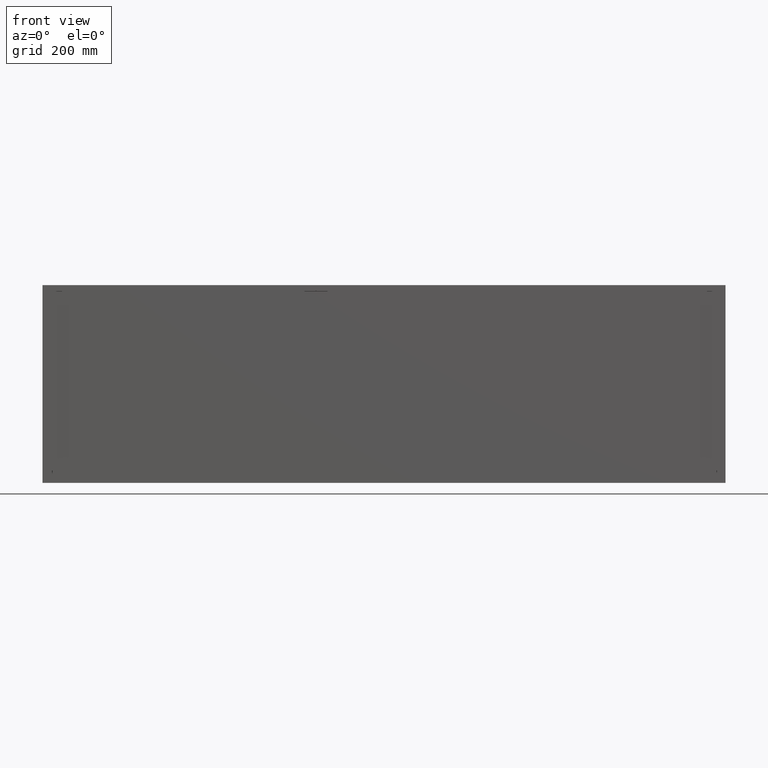
[diagram: clean part render]
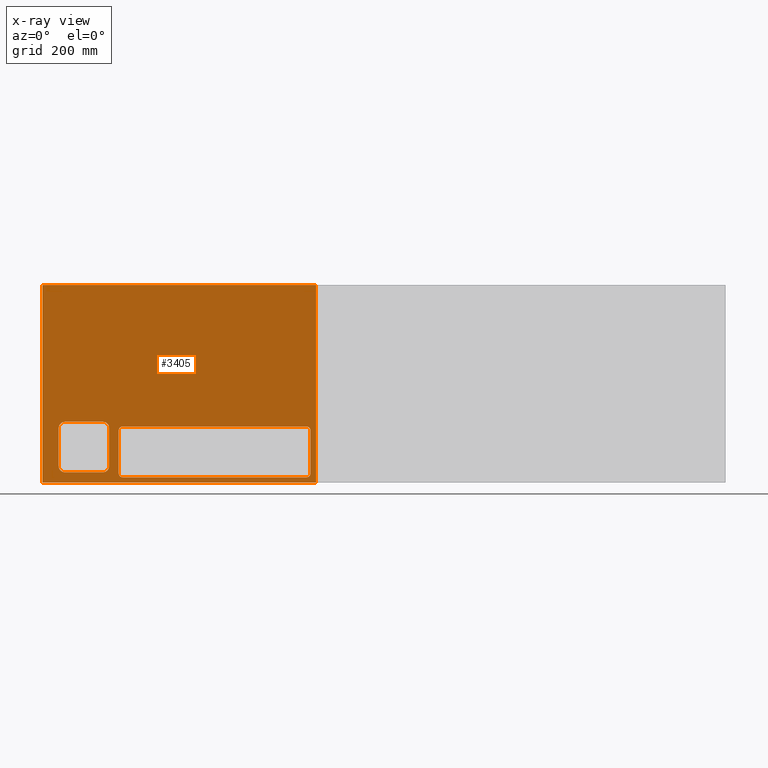
[diagram: x-ray — body ghosted, one internal face saturated and labeled with its STEP entity id]
A machine part, front view, then the same camera in x-ray: the body is ghosted and one INTERNAL B-rep face — a face not visible from any outside direction — is saturated and labeled: STEP entity #3405.
In plain terms, the highlighted planar face has unit normal (0, -1, 0).
Its self-contained STEP definition (entity closure, byte-faithful):
#46 = CARTESIAN_POINT ( 'NONE',  ( 181.0000000000001705, 300.0000000000000000, -335.9999999999999432 ) ) ;
#139 = CARTESIAN_POINT ( 'NONE',  ( 5.551115123125782702E-14, 300.0000000000000000, -470.0000000000000000 ) ) ;
#144 = CARTESIAN_POINT ( 'NONE',  ( 637.0000000000000000, 300.0000000000000000, -447.0034267502443868 ) ) ;
#176 = DIRECTION ( 'NONE',  ( 0.0000000000000000000, 0.0000000000000000000, -1.000000000000000000 ) ) ;
#219 = CARTESIAN_POINT ( 'NONE',  ( 181.0000000000001705, 300.0000000000000000, -340.1398854846225390 ) ) ;
#522 =( BOUNDED_CURVE ( )  B_SPLINE_CURVE ( 3, ( #11392, #219, #5217, #10180 ),
 .UNSPECIFIED., .F., .T. ) 
 B_SPLINE_CURVE_WITH_KNOTS ( ( 4, 4 ),
 ( 2.356537106530518955, 3.926648200649073051 ),
 .UNSPECIFIED. ) 
 CURVE ( )  GEOMETRIC_REPRESENTATION_ITEM ( )  RATIONAL_B_SPLINE_CURVE ( ( 1.000000000000000000, 0.8048993373437811627, 0.8048993373437811627, 1.000000000000000000 ) ) 
 REPRESENTATION_ITEM ( '' )  );
#589 = DIRECTION ( 'NONE',  ( -0.0000000000000000000, 1.000000000000000000, -0.0000000000000000000 ) ) ;
#616 = ORIENTED_EDGE ( 'NONE', *, *, #13535, .T. ) ;
#619 = CIRCLE ( 'NONE', #2713, 15.00000000000001421 ) ;
#755 = CARTESIAN_POINT ( 'NONE',  ( 143.5102767966332067, 300.0000000000000000, -324.9999999999999432 ) ) ;
#840 = CIRCLE ( 'NONE', #2935, 15.00000000000001421 ) ;
#882 = ORIENTED_EDGE ( 'NONE', *, *, #12655, .T. ) ;
#1030 = LINE ( 'NONE', #6034, #15735 ) ;
#1171 = EDGE_CURVE ( 'NONE', #5849, #15453, #7843, .T. ) ;
#1420 = CARTESIAN_POINT ( 'NONE',  ( 53.51027679663322800, 300.0000000000000000, -445.0000000000000568 ) ) ;
#1542 = VERTEX_POINT ( 'NONE', #16061 ) ;
#1622 = VECTOR ( 'NONE', #7757, 1000.000000000000000 ) ;
#1661 = CARTESIAN_POINT ( 'NONE',  ( 325.0000000000000000, 300.0000000000000000, -324.9999999999999432 ) ) ;
#1682 = LINE ( 'NONE', #6679, #4785 ) ;
#1940 = CARTESIAN_POINT ( 'NONE',  ( 143.5102767966331498, 300.0000000000000000, -445.0000000000000568 ) ) ;
#1974 = DIRECTION ( 'NONE',  ( -0.0000000000000000000, 1.000000000000000000, -0.0000000000000000000 ) ) ;
#2016 = VERTEX_POINT ( 'NONE', #10571 ) ;
#2130 = ORIENTED_EDGE ( 'NONE', *, *, #9790, .T. ) ;
#2164 = CARTESIAN_POINT ( 'NONE',  ( 181.0000000000002274, 300.0000000000000000, -447.0034267502443868 ) ) ;
#2250 = CARTESIAN_POINT ( 'NONE',  ( 53.51027679663322800, 300.0000000000000000, -324.9999999999999432 ) ) ;
#2380 = DIRECTION ( 'NONE',  ( 1.000000000000000000, 0.0000000000000000000, 0.0000000000000000000 ) ) ;
#2467 = VECTOR ( 'NONE', #15594, 1000.000000000000000 ) ;
#2494 = VECTOR ( 'NONE', #8017, 1000.000000000000000 ) ;
#2608 = EDGE_CURVE ( 'NONE', #15390, #11669, #5834, .T. ) ;
#2713 = AXIS2_PLACEMENT_3D ( 'NONE', #11764, #589, #5595 ) ;
#2772 = CARTESIAN_POINT ( 'NONE',  ( 5.551115123125782702E-14, 300.0000000000000000, 0.0000000000000000000 ) ) ;
#2815 = VERTEX_POINT ( 'NONE', #8551 ) ;
#2935 = AXIS2_PLACEMENT_3D ( 'NONE', #10441, #15412, #4263 ) ;
#2942 = DIRECTION ( 'NONE',  ( 0.0000000000000000000, -0.0000000000000000000, -1.000000000000000000 ) ) ;
#2949 = DIRECTION ( 'NONE',  ( -0.0000000000000000000, -0.0000000000000000000, 1.000000000000000000 ) ) ;
#3032 = CARTESIAN_POINT ( 'NONE',  ( 5.551115123125782702E-14, 300.0000000000000000, -470.0000000000000000 ) ) ;
#3060 = VERTEX_POINT ( 'NONE', #4872 ) ;
#3117 = VERTEX_POINT ( 'NONE', #3812 ) ;
#3158 = CARTESIAN_POINT ( 'NONE',  ( 650.0000000000001137, 300.0000000000000000, 0.0000000000000000000 ) ) ;
#3183 = CARTESIAN_POINT ( 'NONE',  ( 650.0000000000001137, 300.0000000000000000, 0.0000000000000000000 ) ) ;
#3195 = VERTEX_POINT ( 'NONE', #1420 ) ;
#3264 = EDGE_CURVE ( 'NONE', #10756, #6867, #8593, .T. ) ;
#3395 = CARTESIAN_POINT ( 'NONE',  ( 190.9965732497557838, 300.0000000000000000, -456.9999999999999432 ) ) ;
#3405 = ADVANCED_FACE ( 'NONE', ( #5407, #10365, #15338 ), #4185, .T. ) ;
#3450 = VECTOR ( 'NONE', #5048, 1000.000000000000000 ) ;
#3608 = CARTESIAN_POINT ( 'NONE',  ( 637.0000000000000000, 300.0000000000000000, -345.9965732497554995 ) ) ;
#3662 = VECTOR ( 'NONE', #15764, 1000.000000000000000 ) ;
#3804 = CARTESIAN_POINT ( 'NONE',  ( 5.551115123125782702E-14, 300.0000000000000000, 0.0000000000000000000 ) ) ;
#3812 = CARTESIAN_POINT ( 'NONE',  ( 38.51027679663321379, 300.0000000000000000, -429.9999999999999432 ) ) ;
#3958 = VERTEX_POINT ( 'NONE', #8278 ) ;
#4091 = ORIENTED_EDGE ( 'NONE', *, *, #5774, .T. ) ;
#4185 = PLANE ( 'NONE',  #4438 ) ;
#4244 = DIRECTION ( 'NONE',  ( -0.0000000000000000000, -0.0000000000000000000, -1.000000000000000000 ) ) ;
#4263 = DIRECTION ( 'NONE',  ( 0.0000000000000000000, 0.0000000000000000000, -1.000000000000000000 ) ) ;
#4438 = AXIS2_PLACEMENT_3D ( 'NONE', #9149, #14103, #2942 ) ;
#4747 = ORIENTED_EDGE ( 'NONE', *, *, #10927, .F. ) ;
#4785 = VECTOR ( 'NONE', #11626, 1000.000000000000000 ) ;
#4841 = CARTESIAN_POINT ( 'NONE',  ( 627.0034267502442162, 300.0000000000000000, -335.9999999999999432 ) ) ;
#4872 = CARTESIAN_POINT ( 'NONE',  ( 627.0034267502442162, 300.0000000000000000, -335.9999999999999432 ) ) ;
#5001 = CARTESIAN_POINT ( 'NONE',  ( 38.51027679663321379, 300.0000000000000000, -339.9999999999999432 ) ) ;
#5025 = EDGE_LOOP ( 'NONE', ( #2130, #5291, #616, #7154, #4091, #14267, #14573, #11126 ) ) ;
#5048 = DIRECTION ( 'NONE',  ( -1.000000000000000000, -0.0000000000000000000, -0.0000000000000000000 ) ) ;
#5068 = EDGE_CURVE ( 'NONE', #10756, #11106, #12404, .T. ) ;
#5141 = CARTESIAN_POINT ( 'NONE',  ( 637.0000000000001137, 300.0000000000000000, -452.8601145153775178 ) ) ;
#5217 = CARTESIAN_POINT ( 'NONE',  ( 185.1398854846227664, 300.0000000000000000, -336.0000000000000000 ) ) ;
#5291 = ORIENTED_EDGE ( 'NONE', *, *, #12243, .T. ) ;
#5333 = ORIENTED_EDGE ( 'NONE', *, *, #13424, .F. ) ;
#5407 = FACE_BOUND ( 'NONE', #13217, .T. ) ;
#5414 = LINE ( 'NONE', #14112, #6135 ) ;
#5595 = DIRECTION ( 'NONE',  ( 0.0000000000000000000, 0.0000000000000000000, -1.000000000000000000 ) ) ;
#5661 = LINE ( 'NONE', #10619, #2467 ) ;
#5772 = AXIS2_PLACEMENT_3D ( 'NONE', #6396, #11352, #176 ) ;
#5774 = EDGE_CURVE ( 'NONE', #10091, #5849, #12835, .T. ) ;
#5834 = LINE ( 'NONE', #10792, #3662 ) ;
#5849 = VERTEX_POINT ( 'NONE', #755 ) ;
#6034 = CARTESIAN_POINT ( 'NONE',  ( 181.0000000000001705, 300.0000000000000000, -335.9999999999999432 ) ) ;
#6135 = VECTOR ( 'NONE', #2949, 1000.000000000000000 ) ;
#6184 =( BOUNDED_CURVE ( )  B_SPLINE_CURVE ( 3, ( #4841, #9806, #14771, #3608 ),
 .UNSPECIFIED., .F., .T. ) 
 B_SPLINE_CURVE_WITH_KNOTS ( ( 4, 4 ),
 ( 2.356537106530485648, 3.926648200649067277 ),
 .UNSPECIFIED. ) 
 CURVE ( )  GEOMETRIC_REPRESENTATION_ITEM ( )  RATIONAL_B_SPLINE_CURVE ( ( 1.000000000000000000, 0.8048993373437747234, 0.8048993373437747234, 1.000000000000000000 ) ) 
 REPRESENTATION_ITEM ( '' )  );
#6396 = CARTESIAN_POINT ( 'NONE',  ( 143.5102767966332067, 300.0000000000000000, -339.9999999999999432 ) ) ;
#6486 = EDGE_CURVE ( 'NONE', #15453, #2016, #10421, .T. ) ;
#6487 = ORIENTED_EDGE ( 'NONE', *, *, #2608, .F. ) ;
#6617 = VECTOR ( 'NONE', #8145, 1000.000000000000000 ) ;
#6643 = VERTEX_POINT ( 'NONE', #1940 ) ;
#6658 = DIRECTION ( 'NONE',  ( 1.000000000000000000, -0.0000000000000000000, -0.0000000000000000000 ) ) ;
#6669 = AXIS2_PLACEMENT_3D ( 'NONE', #13142, #1974, #6971 ) ;
#6679 = CARTESIAN_POINT ( 'NONE',  ( 325.0000000000000000, 300.0000000000000000, -445.0000000000000568 ) ) ;
#6805 = EDGE_CURVE ( 'NONE', #3060, #3958, #11222, .T. ) ;
#6867 = VERTEX_POINT ( 'NONE', #11303 ) ;
#6971 = DIRECTION ( 'NONE',  ( 2.220446049250310872E-14, 0.0000000000000000000, -1.000000000000000000 ) ) ;
#7154 = ORIENTED_EDGE ( 'NONE', *, *, #7376, .T. ) ;
#7259 = VERTEX_POINT ( 'NONE', #3804 ) ;
#7376 = EDGE_CURVE ( 'NONE', #14727, #10091, #840, .T. ) ;
#7478 = VERTEX_POINT ( 'NONE', #3183 ) ;
#7757 = DIRECTION ( 'NONE',  ( 1.000000000000000000, 0.0000000000000000000, 0.0000000000000000000 ) ) ;
#7843 = CIRCLE ( 'NONE', #5772, 15.00000000000001421 ) ;
#8017 = DIRECTION ( 'NONE',  ( -1.000000000000000000, -0.0000000000000000000, -0.0000000000000000000 ) ) ;
#8145 = DIRECTION ( 'NONE',  ( -2.362176648138631388E-16, 0.0000000000000000000, -1.000000000000000000 ) ) ;
#8278 = CARTESIAN_POINT ( 'NONE',  ( 190.9965732497557269, 300.0000000000000000, -335.9999999999999432 ) ) ;
#8304 = ORIENTED_EDGE ( 'NONE', *, *, #5068, .T. ) ;
#8374 = CARTESIAN_POINT ( 'NONE',  ( 185.1398854846228232, 300.0000000000000000, -456.9999999999999432 ) ) ;
#8551 = CARTESIAN_POINT ( 'NONE',  ( 181.0000000000001705, 300.0000000000000000, -345.9965732497554995 ) ) ;
#8593 = LINE ( 'NONE', #13545, #10933 ) ;
#8675 = CARTESIAN_POINT ( 'NONE',  ( 158.5102767966332067, 300.0000000000000000, -339.9999999999999432 ) ) ;
#9080 = VECTOR ( 'NONE', #4244, 1000.000000000000000 ) ;
#9149 = CARTESIAN_POINT ( 'NONE',  ( 325.0000000000000000, 300.0000000000000000, -235.0000000000000000 ) ) ;
#9327 = ORIENTED_EDGE ( 'NONE', *, *, #6805, .F. ) ;
#9339 = EDGE_CURVE ( 'NONE', #7259, #7478, #13935, .T. ) ;
#9345 = ORIENTED_EDGE ( 'NONE', *, *, #9691, .T. ) ;
#9691 = EDGE_CURVE ( 'NONE', #15390, #6867, #13444, .T. ) ;
#9790 = EDGE_CURVE ( 'NONE', #6643, #3195, #1682, .T. ) ;
#9806 = CARTESIAN_POINT ( 'NONE',  ( 632.8601145153772904, 300.0000000000000568, -335.9999999999999432 ) ) ;
#9812 = EDGE_LOOP ( 'NONE', ( #5333, #14379, #4747, #12745 ) ) ;
#9831 = ORIENTED_EDGE ( 'NONE', *, *, #11673, .F. ) ;
#10091 = VERTEX_POINT ( 'NONE', #2250 ) ;
#10107 = CARTESIAN_POINT ( 'NONE',  ( 632.8601145153777452, 300.0000000000000000, -457.0000000000000568 ) ) ;
#10180 = CARTESIAN_POINT ( 'NONE',  ( 190.9965732497557269, 300.0000000000000000, -335.9999999999999432 ) ) ;
#10365 = FACE_BOUND ( 'NONE', #5025, .T. ) ;
#10421 = LINE ( 'NONE', #15395, #9080 ) ;
#10436 = ORIENTED_EDGE ( 'NONE', *, *, #3264, .F. ) ;
#10441 = CARTESIAN_POINT ( 'NONE',  ( 53.51027679663322800, 300.0000000000000000, -339.9999999999999432 ) ) ;
#10571 = CARTESIAN_POINT ( 'NONE',  ( 158.5102767966332635, 300.0000000000000000, -429.9999999999999432 ) ) ;
#10619 = CARTESIAN_POINT ( 'NONE',  ( 38.51027679663321379, 300.0000000000000000, -235.0000000000000000 ) ) ;
#10756 = VERTEX_POINT ( 'NONE', #16131 ) ;
#10792 = CARTESIAN_POINT ( 'NONE',  ( 637.0000000000000000, 300.0000000000000000, -335.9999999999999432 ) ) ;
#10927 = EDGE_CURVE ( 'NONE', #7478, #1542, #14336, .T. ) ;
#10933 = VECTOR ( 'NONE', #2380, 1000.000000000000000 ) ;
#10994 = DIRECTION ( 'NONE',  ( 2.293849224432141861E-16, 0.0000000000000000000, -1.000000000000000000 ) ) ;
#11106 = VERTEX_POINT ( 'NONE', #12278 ) ;
#11126 = ORIENTED_EDGE ( 'NONE', *, *, #14524, .T. ) ;
#11222 = LINE ( 'NONE', #46, #3450 ) ;
#11303 = CARTESIAN_POINT ( 'NONE',  ( 627.0034267502444436, 300.0000000000000000, -456.9999999999999432 ) ) ;
#11352 = DIRECTION ( 'NONE',  ( -0.0000000000000000000, 1.000000000000000000, -0.0000000000000000000 ) ) ;
#11392 = CARTESIAN_POINT ( 'NONE',  ( 181.0000000000001705, 300.0000000000000000, -345.9965732497554995 ) ) ;
#11425 = ORIENTED_EDGE ( 'NONE', *, *, #15863, .T. ) ;
#11626 = DIRECTION ( 'NONE',  ( -1.000000000000000000, -0.0000000000000000000, -0.0000000000000000000 ) ) ;
#11665 = VECTOR ( 'NONE', #6658, 1000.000000000000000 ) ;
#11669 = VERTEX_POINT ( 'NONE', #12205 ) ;
#11673 = EDGE_CURVE ( 'NONE', #2815, #11106, #1030, .T. ) ;
#11764 = CARTESIAN_POINT ( 'NONE',  ( 53.51027679663322800, 300.0000000000000000, -429.9999999999999432 ) ) ;
#11858 = VERTEX_POINT ( 'NONE', #139 ) ;
#12205 = CARTESIAN_POINT ( 'NONE',  ( 637.0000000000000000, 300.0000000000000000, -345.9965732497554995 ) ) ;
#12243 = EDGE_CURVE ( 'NONE', #3195, #3117, #619, .T. ) ;
#12244 = CARTESIAN_POINT ( 'NONE',  ( 637.0000000000000000, 300.0000000000000000, -447.0034267502443868 ) ) ;
#12278 = CARTESIAN_POINT ( 'NONE',  ( 181.0000000000002274, 300.0000000000000000, -447.0034267502443868 ) ) ;
#12404 =( BOUNDED_CURVE ( )  B_SPLINE_CURVE ( 3, ( #3395, #8374, #13327, #2164 ),
 .UNSPECIFIED., .F., .T. ) 
 B_SPLINE_CURVE_WITH_KNOTS ( ( 4, 4 ),
 ( 2.356537106530507852, 3.926648200649067721 ),
 .UNSPECIFIED. ) 
 CURVE ( )  GEOMETRIC_REPRESENTATION_ITEM ( )  RATIONAL_B_SPLINE_CURVE ( ( 1.000000000000000000, 0.8048993373437799415, 0.8048993373437799415, 1.000000000000000000 ) ) 
 REPRESENTATION_ITEM ( '' )  );
#12655 = EDGE_CURVE ( 'NONE', #3060, #11669, #6184, .T. ) ;
#12745 = ORIENTED_EDGE ( 'NONE', *, *, #9339, .F. ) ;
#12835 = LINE ( 'NONE', #1661, #11665 ) ;
#13142 = CARTESIAN_POINT ( 'NONE',  ( 143.5102767966332635, 300.0000000000000000, -429.9999999999999432 ) ) ;
#13217 = EDGE_LOOP ( 'NONE', ( #10436, #8304, #9831, #11425, #9327, #882, #6487, #9345 ) ) ;
#13327 = CARTESIAN_POINT ( 'NONE',  ( 181.0000000000001705, 300.0000000000000000, -452.8601145153774041 ) ) ;
#13424 = EDGE_CURVE ( 'NONE', #11858, #7259, #5414, .T. ) ;
#13444 =( BOUNDED_CURVE ( )  B_SPLINE_CURVE ( 3, ( #144, #5141, #10107, #15075 ),
 .UNSPECIFIED., .F., .T. ) 
 B_SPLINE_CURVE_WITH_KNOTS ( ( 4, 4 ),
 ( 2.356537106530507408, 3.926648200649078380 ),
 .UNSPECIFIED. ) 
 CURVE ( )  GEOMETRIC_REPRESENTATION_ITEM ( )  RATIONAL_B_SPLINE_CURVE ( ( 1.000000000000000000, 0.8048993373437772769, 0.8048993373437772769, 1.000000000000000000 ) ) 
 REPRESENTATION_ITEM ( '' )  );
#13535 = EDGE_CURVE ( 'NONE', #3117, #14727, #5661, .T. ) ;
#13545 = CARTESIAN_POINT ( 'NONE',  ( 181.0000000000002274, 300.0000000000000000, -456.9999999999999432 ) ) ;
#13687 = CIRCLE ( 'NONE', #6669, 15.00000000000001421 ) ;
#13935 = LINE ( 'NONE', #2772, #1622 ) ;
#14103 = DIRECTION ( 'NONE',  ( 0.0000000000000000000, -1.000000000000000000, 0.0000000000000000000 ) ) ;
#14112 = CARTESIAN_POINT ( 'NONE',  ( 5.551115123125782702E-14, 300.0000000000000000, 0.0000000000000000000 ) ) ;
#14204 = LINE ( 'NONE', #3032, #2494 ) ;
#14267 = ORIENTED_EDGE ( 'NONE', *, *, #1171, .T. ) ;
#14336 = LINE ( 'NONE', #3158, #6617 ) ;
#14379 = ORIENTED_EDGE ( 'NONE', *, *, #14459, .F. ) ;
#14459 = EDGE_CURVE ( 'NONE', #1542, #11858, #14204, .T. ) ;
#14524 = EDGE_CURVE ( 'NONE', #2016, #6643, #13687, .T. ) ;
#14573 = ORIENTED_EDGE ( 'NONE', *, *, #6486, .T. ) ;
#14727 = VERTEX_POINT ( 'NONE', #5001 ) ;
#14771 = CARTESIAN_POINT ( 'NONE',  ( 637.0000000000001137, 300.0000000000000568, -340.1398854846224253 ) ) ;
#15075 = CARTESIAN_POINT ( 'NONE',  ( 627.0034267502444436, 300.0000000000000000, -456.9999999999999432 ) ) ;
#15338 = FACE_OUTER_BOUND ( 'NONE', #9812, .T. ) ;
#15390 = VERTEX_POINT ( 'NONE', #12244 ) ;
#15395 = CARTESIAN_POINT ( 'NONE',  ( 158.5102767966332067, 300.0000000000000000, -235.0000000000000000 ) ) ;
#15412 = DIRECTION ( 'NONE',  ( -0.0000000000000000000, 1.000000000000000000, -0.0000000000000000000 ) ) ;
#15453 = VERTEX_POINT ( 'NONE', #8675 ) ;
#15594 = DIRECTION ( 'NONE',  ( -0.0000000000000000000, -0.0000000000000000000, 1.000000000000000000 ) ) ;
#15735 = VECTOR ( 'NONE', #10994, 1000.000000000000000 ) ;
#15764 = DIRECTION ( 'NONE',  ( -0.0000000000000000000, -0.0000000000000000000, 1.000000000000000000 ) ) ;
#15863 = EDGE_CURVE ( 'NONE', #2815, #3958, #522, .T. ) ;
#16061 = CARTESIAN_POINT ( 'NONE',  ( 649.9999999999998863, 300.0000000000000000, -470.0000000000000000 ) ) ;
#16131 = CARTESIAN_POINT ( 'NONE',  ( 190.9965732497557838, 300.0000000000000000, -456.9999999999999432 ) ) ;